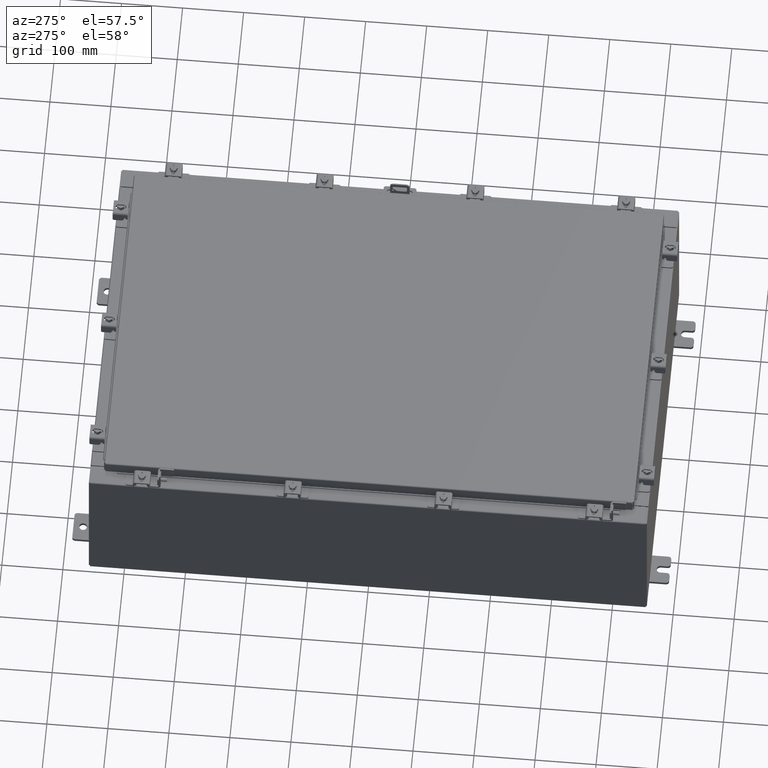
[diagram: clean part render]
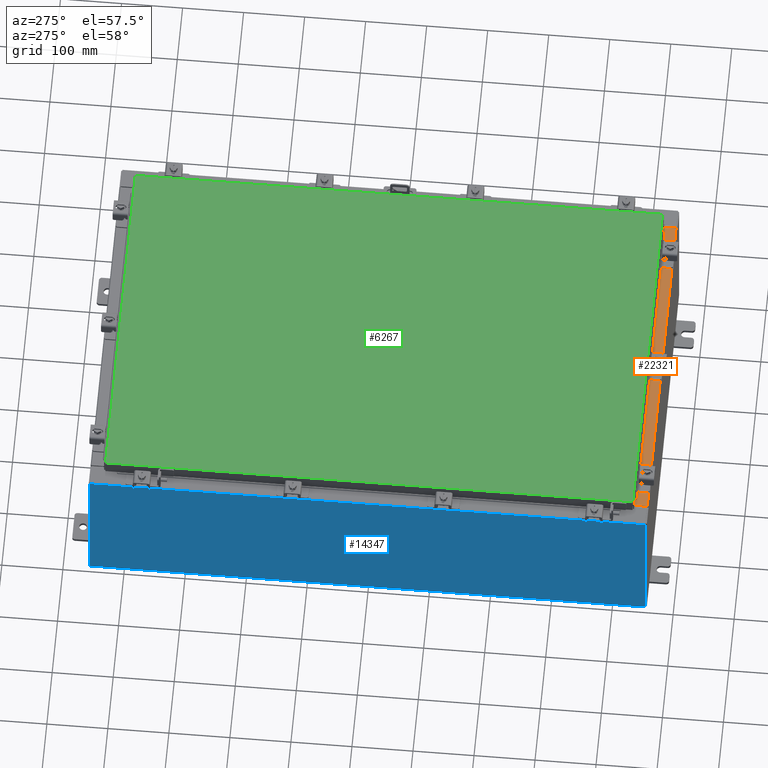
[diagram: same view with three faces highlighted in distinct colors, each labeled with its STEP entity id]
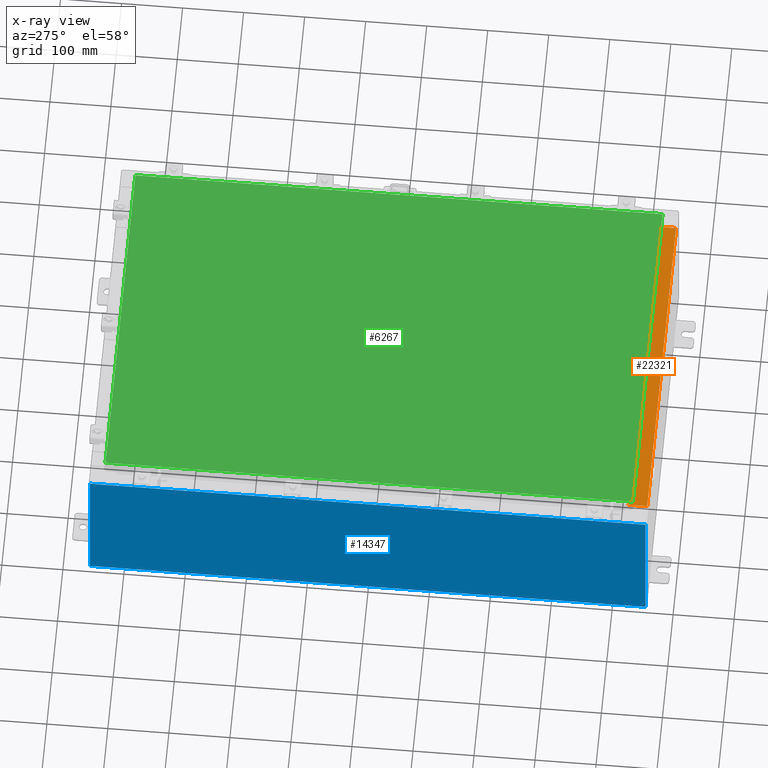
[diagram: x-ray of the same camera — body ghosted, the three highlighted faces saturated]
A machine part, auxiliary view with three faces highlighted in distinct colors.
The next image is the same camera in x-ray (body ghosted, the three faces saturated) — at least one of them is partly hidden behind the body in this view.
Their STEP definitions:

[orange] entity #22321 — the highlighted planar face has unit normal (-0, -0, 1).
#150 = LINE ( 'NONE', #17869, #8620 ) ;
#668 = CARTESIAN_POINT ( 'NONE',  ( -10.63720000000000200, -0.07469999999999973900, 5.000000000000000000 ) ) ;
#1317 = CARTESIAN_POINT ( 'NONE',  ( 4.504626575497439200E-018, -0.08770000000000081900, 5.000000000000000000 ) ) ;
#1508 = CARTESIAN_POINT ( 'NONE',  ( 10.63720000000000200, -1.300299999999999800, 5.000000000000004400 ) ) ;
#1986 = VERTEX_POINT ( 'NONE', #17949 ) ;
#2537 = LINE ( 'NONE', #1508, #20598 ) ;
#2786 = ORIENTED_EDGE ( 'NONE', *, *, #3127, .F. ) ;
#3127 = EDGE_CURVE ( 'NONE', #16235, #1986, #2537, .T. ) ;
#3163 = ORIENTED_EDGE ( 'NONE', *, *, #4353, .T. ) ;
#3217 = VECTOR ( 'NONE', #11512, 39.37007874015748100 ) ;
#3905 = CARTESIAN_POINT ( 'NONE',  ( -10.63720000000000200, -0.08770000000000081900, 5.000000000000000000 ) ) ;
#4353 = EDGE_CURVE ( 'NONE', #16235, #6842, #18300, .T. ) ;
#4794 = DIRECTION ( 'NONE',  ( -1.000000000000000000, -5.136404305013091600E-017, 1.831837571187793700E-031 ) ) ;
#5778 = CARTESIAN_POINT ( 'NONE',  ( 10.63720000000000400, -0.08770000000000047200, 5.000000000000000000 ) ) ;
#6842 = VERTEX_POINT ( 'NONE', #3905 ) ;
#7152 = CARTESIAN_POINT ( 'NONE',  ( 0.0000000000000000000, 1.782631094477737600E-014, 5.000000000000000000 ) ) ;
#7448 = VERTEX_POINT ( 'NONE', #10462 ) ;
#8620 = VECTOR ( 'NONE', #23318, 39.37007874015748100 ) ;
#8960 = DIRECTION ( 'NONE',  ( 0.0000000000000000000, 3.566381192773190000E-015, 1.000000000000000000 ) ) ;
#10269 = ORIENTED_EDGE ( 'NONE', *, *, #15366, .F. ) ;
#10462 = CARTESIAN_POINT ( 'NONE',  ( -10.63720000000000200, -1.287299999999999200, 5.000000000000004400 ) ) ;
#11512 = DIRECTION ( 'NONE',  ( -0.0000000000000000000, 1.000000000000000000, -3.566381192773190000E-015 ) ) ;
#13427 = FACE_OUTER_BOUND ( 'NONE', #15365, .T. ) ;
#13529 = VECTOR ( 'NONE', #4794, 39.37007874015748100 ) ;
#15365 = EDGE_LOOP ( 'NONE', ( #10269, #23085, #2786, #3163 ) ) ;
#15366 = EDGE_CURVE ( 'NONE', #7448, #6842, #21836, .T. ) ;
#16235 = VERTEX_POINT ( 'NONE', #5778 ) ;
#16934 = AXIS2_PLACEMENT_3D ( 'NONE', #7152, #8960, #21567 ) ;
#17869 = CARTESIAN_POINT ( 'NONE',  ( 10.63720000000000400, -1.287299999999999900, 5.000000000000003600 ) ) ;
#17939 = PLANE ( 'NONE',  #16934 ) ;
#17949 = CARTESIAN_POINT ( 'NONE',  ( 10.63720000000000200, -1.287299999999999900, 5.000000000000004400 ) ) ;
#18300 = LINE ( 'NONE', #1317, #13529 ) ;
#19574 = DIRECTION ( 'NONE',  ( -0.0000000000000000000, -1.000000000000000000, 3.566381192773190000E-015 ) ) ;
#20598 = VECTOR ( 'NONE', #19574, 39.37007874015748100 ) ;
#21567 = DIRECTION ( 'NONE',  ( 0.0000000000000000000, -1.000000000000000000, 3.566381192773190000E-015 ) ) ;
#21836 = LINE ( 'NONE', #668, #3217 ) ;
#22317 = EDGE_CURVE ( 'NONE', #1986, #7448, #150, .T. ) ;
#22321 = ADVANCED_FACE ( 'NONE', ( #13427 ), #17939, .T. ) ;
#23085 = ORIENTED_EDGE ( 'NONE', *, *, #22317, .F. ) ;
#23318 = DIRECTION ( 'NONE',  ( -1.000000000000000000, 0.0000000000000000000, 0.0000000000000000000 ) ) ;

[blue] entity #14347 — the highlighted planar face has unit normal (1, 0, 0).
#732 = VECTOR ( 'NONE', #18465, 39.37007874015748100 ) ;
#1755 = CARTESIAN_POINT ( 'NONE',  ( -12.00000000000003600, -17.92530000000000400, 9.837599999999998300 ) ) ;
#3174 = LINE ( 'NONE', #13377, #12248 ) ;
#3637 = CARTESIAN_POINT ( 'NONE',  ( -12.00000000000000200, -17.92530000000000400, 0.01299999999999984700 ) ) ;
#3741 = DIRECTION ( 'NONE',  ( -0.0000000000000000000, 1.000000000000000000, -0.0000000000000000000 ) ) ;
#4356 = DIRECTION ( 'NONE',  ( 3.523082860860888200E-015, 0.0000000000000000000, -1.000000000000000000 ) ) ;
#4492 = CARTESIAN_POINT ( 'NONE',  ( -12.00000000000000200, -17.92530000000000400, -4.253780798634223500E-014 ) ) ;
#5526 = LINE ( 'NONE', #12847, #23022 ) ;
#5922 = EDGE_CURVE ( 'NONE', #8853, #21239, #12985, .T. ) ;
#6231 = CARTESIAN_POINT ( 'NONE',  ( -12.00000000000000200, 0.0000000000000000000, -4.253780798634223500E-014 ) ) ;
#6868 = CARTESIAN_POINT ( 'NONE',  ( -12.00000000000000200, 17.92529999999999600, 0.01299999999999984300 ) ) ;
#7027 = VECTOR ( 'NONE', #20738, 39.37007874015748100 ) ;
#7919 = VERTEX_POINT ( 'NONE', #22370 ) ;
#8853 = VERTEX_POINT ( 'NONE', #3637 ) ;
#9871 = DIRECTION ( 'NONE',  ( 3.523082860860887800E-015, 0.0000000000000000000, -1.000000000000000000 ) ) ;
#10252 = ORIENTED_EDGE ( 'NONE', *, *, #20217, .F. ) ;
#10989 = ORIENTED_EDGE ( 'NONE', *, *, #13601, .T. ) ;
#12248 = VECTOR ( 'NONE', #4356, 39.37007874015748100 ) ;
#12847 = CARTESIAN_POINT ( 'NONE',  ( -12.00000000000000200, 17.92529999999999600, 0.01299999999999984700 ) ) ;
#12985 = LINE ( 'NONE', #4492, #7027 ) ;
#13062 = CARTESIAN_POINT ( 'NONE',  ( -12.00000000000003600, -17.92530000000000400, 9.837599999999998300 ) ) ;
#13377 = CARTESIAN_POINT ( 'NONE',  ( -12.00000000000000200, 17.92529999999999600, -4.253780798634223500E-014 ) ) ;
#13601 = EDGE_CURVE ( 'NONE', #21239, #7919, #19942, .T. ) ;
#14347 = ADVANCED_FACE ( 'NONE', ( #20746 ), #20647, .F. ) ;
#14708 = AXIS2_PLACEMENT_3D ( 'NONE', #6231, #15240, #9871 ) ;
#14710 = ORIENTED_EDGE ( 'NONE', *, *, #16344, .T. ) ;
#14944 = VERTEX_POINT ( 'NONE', #6868 ) ;
#15240 = DIRECTION ( 'NONE',  ( 1.000000000000000000, 0.0000000000000000000, 3.523082860860887800E-015 ) ) ;
#16344 = EDGE_CURVE ( 'NONE', #7919, #14944, #3174, .T. ) ;
#18158 = EDGE_LOOP ( 'NONE', ( #10989, #14710, #10252, #18463 ) ) ;
#18463 = ORIENTED_EDGE ( 'NONE', *, *, #5922, .T. ) ;
#18465 = DIRECTION ( 'NONE',  ( 0.0000000000000000000, 1.000000000000000000, 0.0000000000000000000 ) ) ;
#19942 = LINE ( 'NONE', #13062, #732 ) ;
#20217 = EDGE_CURVE ( 'NONE', #8853, #14944, #5526, .T. ) ;
#20647 = PLANE ( 'NONE',  #14708 ) ;
#20738 = DIRECTION ( 'NONE',  ( -3.523082860860888200E-015, 0.0000000000000000000, 1.000000000000000000 ) ) ;
#20746 = FACE_OUTER_BOUND ( 'NONE', #18158, .T. ) ;
#21239 = VERTEX_POINT ( 'NONE', #1755 ) ;
#22370 = CARTESIAN_POINT ( 'NONE',  ( -12.00000000000003600, 17.92529999999999600, 9.837599999999998300 ) ) ;
#23022 = VECTOR ( 'NONE', #3741, 39.37007874015748100 ) ;

[green] entity #6267 — the highlighted planar face has unit normal (0, 0, -1).
#85 = LINE ( 'NONE', #1471, #13961 ) ;
#698 = DIRECTION ( 'NONE',  ( 1.000000000000000000, -0.0000000000000000000, -0.0000000000000000000 ) ) ;
#1471 = CARTESIAN_POINT ( 'NONE',  ( 10.99029999999999800, 17.00630000000000000, -2.048885995248197400E-016 ) ) ;
#3090 = CARTESIAN_POINT ( 'NONE',  ( -10.99030000000000100, -17.00630000000000000, 8.878505979408856000E-016 ) ) ;
#3336 = CARTESIAN_POINT ( 'NONE',  ( 10.99029999999999800, 17.00630000000000000, -2.048885995248197400E-016 ) ) ;
#4765 = EDGE_LOOP ( 'NONE', ( #17074, #11175, #20697, #18792 ) ) ;
#5799 = VECTOR ( 'NONE', #6390, 39.37007874015748100 ) ;
#5848 = EDGE_CURVE ( 'NONE', #22825, #19470, #18317, .T. ) ;
#6093 = LINE ( 'NONE', #15319, #19923 ) ;
#6267 = ADVANCED_FACE ( 'NONE', ( #16354 ), #19104, .F. ) ;
#6390 = DIRECTION ( 'NONE',  ( 0.0000000000000000000, 1.000000000000000000, 0.0000000000000000000 ) ) ;
#8294 = VERTEX_POINT ( 'NONE', #17948 ) ;
#10136 = DIRECTION ( 'NONE',  ( 0.0000000000000000000, 0.0000000000000000000, -1.000000000000000000 ) ) ;
#11175 = ORIENTED_EDGE ( 'NONE', *, *, #13780, .T. ) ;
#11541 = CARTESIAN_POINT ( 'NONE',  ( -10.99030000000000100, -17.00630000000000000, 8.878505979408856000E-016 ) ) ;
#12101 = EDGE_CURVE ( 'NONE', #13891, #8294, #85, .T. ) ;
#13780 = EDGE_CURVE ( 'NONE', #19470, #13891, #20193, .T. ) ;
#13891 = VERTEX_POINT ( 'NONE', #3336 ) ;
#13961 = VECTOR ( 'NONE', #19609, 39.37007874015748100 ) ;
#15319 = CARTESIAN_POINT ( 'NONE',  ( -10.99030000000000500, 17.00630000000000000, -2.390366994456230300E-015 ) ) ;
#16261 = CARTESIAN_POINT ( 'NONE',  ( 10.99029999999999800, -17.00630000000000300, -1.297627796990525000E-015 ) ) ;
#16354 = FACE_OUTER_BOUND ( 'NONE', #4765, .T. ) ;
#17074 = ORIENTED_EDGE ( 'NONE', *, *, #5848, .T. ) ;
#17176 = DIRECTION ( 'NONE',  ( 0.0000000000000000000, -1.000000000000000000, 0.0000000000000000000 ) ) ;
#17948 = CARTESIAN_POINT ( 'NONE',  ( -10.99030000000000500, 17.00630000000000000, -2.390366994456230300E-015 ) ) ;
#18317 = LINE ( 'NONE', #11541, #19462 ) ;
#18792 = ORIENTED_EDGE ( 'NONE', *, *, #21632, .T. ) ;
#19021 = CARTESIAN_POINT ( 'NONE',  ( 10.99029999999999800, -17.00630000000000300, -1.297627796990525000E-015 ) ) ;
#19104 = PLANE ( 'NONE',  #23015 ) ;
#19462 = VECTOR ( 'NONE', #698, 39.37007874015748100 ) ;
#19470 = VERTEX_POINT ( 'NONE', #16261 ) ;
#19609 = DIRECTION ( 'NONE',  ( -1.000000000000000000, -0.0000000000000000000, -0.0000000000000000000 ) ) ;
#19923 = VECTOR ( 'NONE', #17176, 39.37007874015748100 ) ;
#20193 = LINE ( 'NONE', #19021, #5799 ) ;
#20697 = ORIENTED_EDGE ( 'NONE', *, *, #12101, .T. ) ;
#20918 = CARTESIAN_POINT ( 'NONE',  ( 0.0000000000000000000, 0.0000000000000000000, 0.0000000000000000000 ) ) ;
#21632 = EDGE_CURVE ( 'NONE', #8294, #22825, #6093, .T. ) ;
#22722 = DIRECTION ( 'NONE',  ( -1.000000000000000000, 0.0000000000000000000, -0.0000000000000000000 ) ) ;
#22825 = VERTEX_POINT ( 'NONE', #3090 ) ;
#23015 = AXIS2_PLACEMENT_3D ( 'NONE', #20918, #10136, #22722 ) ;